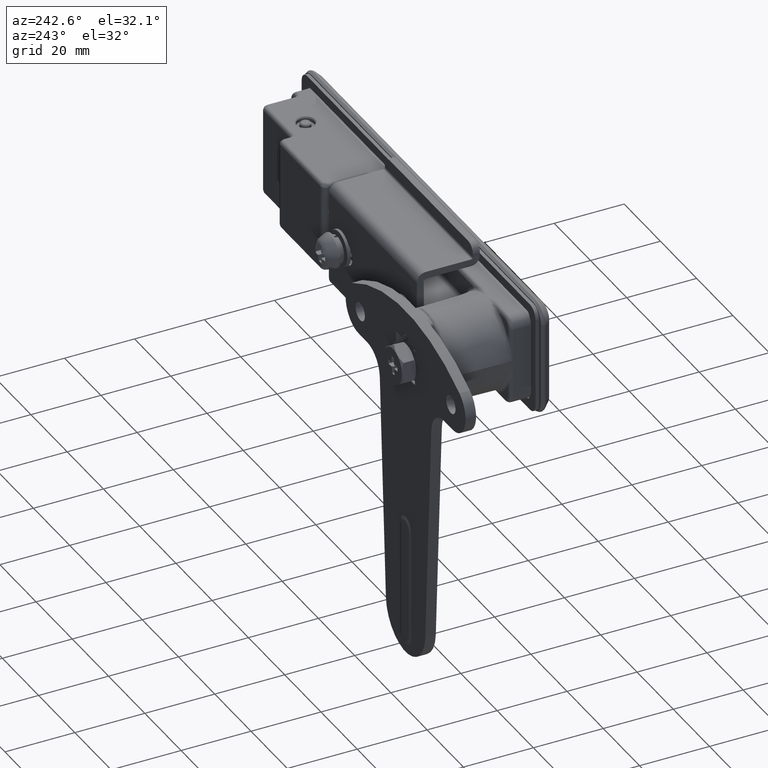
[diagram: clean part render]
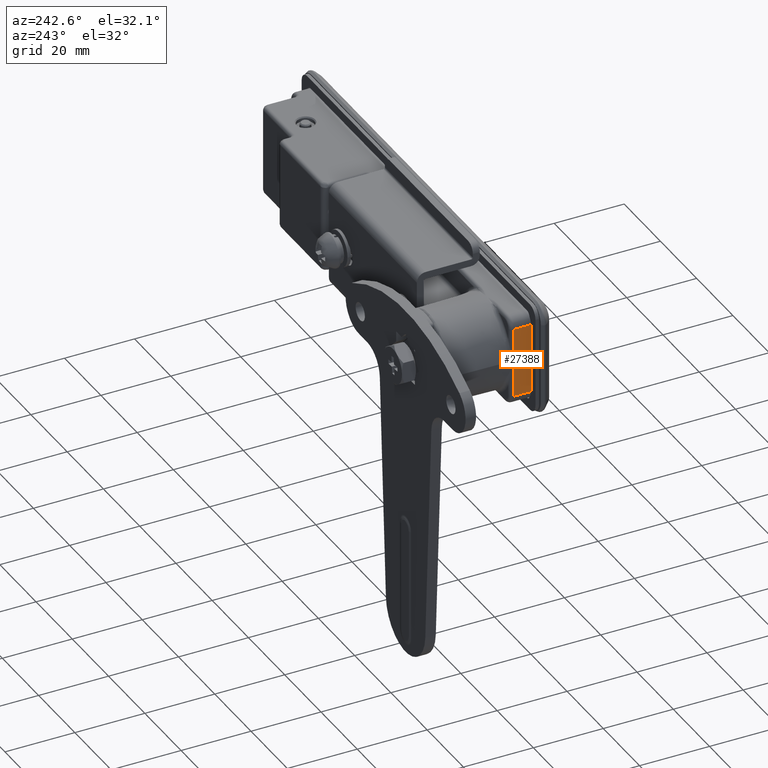
[diagram: same view with one face highlighted and labeled with its STEP entity id]
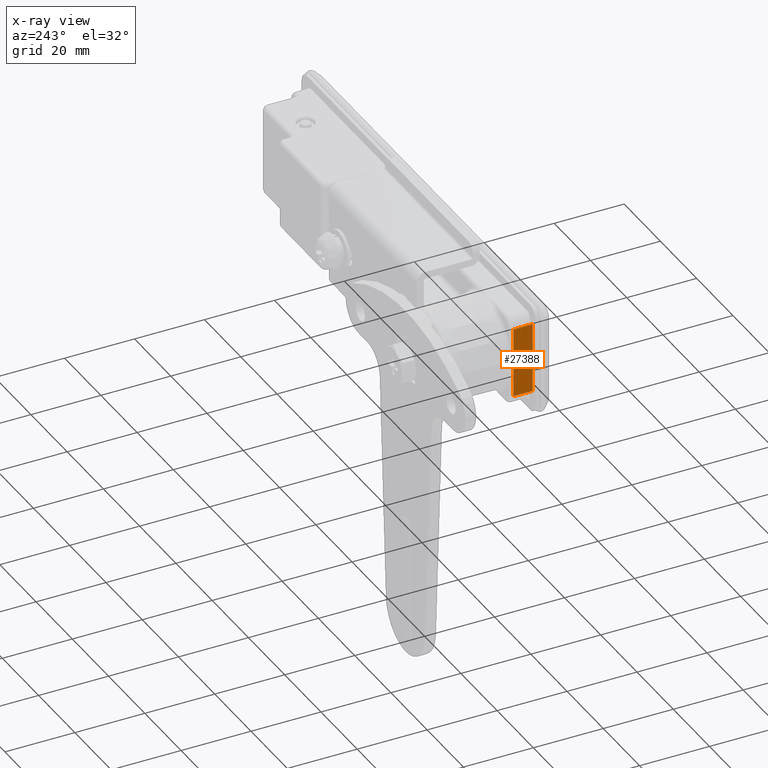
[diagram: x-ray of the same camera — body ghosted, the highlighted face saturated]
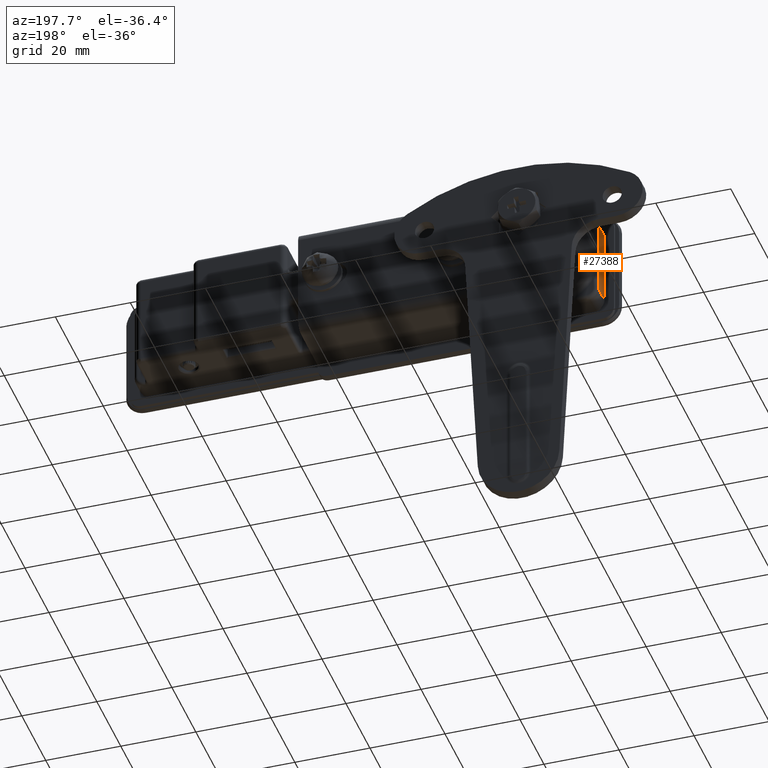
[diagram: same view with one face highlighted and labeled with its STEP entity id]
A machine part, auxiliary view. The second image highlights one B-rep face of the part: STEP entity #27388.
The next image is the same camera in x-ray: the body ghosted, the highlighted face saturated — about 0% of this face is hidden behind the body in this view.
A second angle (auxiliary view) of the same face is appended — the face is thin or edge-on in the first view.
In plain terms, the highlighted planar face has unit normal (-1, 0, 0).
Its self-contained STEP definition (entity closure, byte-faithful):
#2990=FACE_OUTER_BOUND('',#4740,.T.);
#4740=EDGE_LOOP('',(#18288,#18289,#18290,#18291,#18292,#18293,#18294,#18295));
#6656=(
BOUNDED_CURVE()
B_SPLINE_CURVE(2,(#40217,#40218,#40219),.UNSPECIFIED.,.F.,.F.)
B_SPLINE_CURVE_WITH_KNOTS((3,3),(0.498072394161814,1.04686765447884),
 .UNSPECIFIED.)
CURVE()
GEOMETRIC_REPRESENTATION_ITEM()
RATIONAL_B_SPLINE_CURVE((1.00439977624654,1.00567045705582,1.00439976917386))
REPRESENTATION_ITEM('')
);
#6691=B_SPLINE_CURVE_WITH_KNOTS('',3,(#40206,#40207,#40208,#40209,#40210,
#40211,#40212,#40213,#40214,#40215),.UNSPECIFIED.,.F.,.F.,(4,2,2,2,4),(0.,
0.170968410091103,0.333333333281493,0.666666666563085,0.999999999844578),
 .UNSPECIFIED.);
#6692=B_SPLINE_CURVE_WITH_KNOTS('',3,(#40220,#40221,#40222,#40223,#40224,
#40225),.UNSPECIFIED.,.F.,.F.,(4,1,1,4),(0.,0.3333333333333,0.6666666666667,
1.),.UNSPECIFIED.);
#7352=LINE('',#40196,#9397);
#7353=LINE('',#40198,#9398);
#7354=LINE('',#40200,#9399);
#7355=LINE('',#40202,#9400);
#7356=LINE('',#40204,#9401);
#9397=VECTOR('',#32163,9.29763469273417);
#9398=VECTOR('',#32164,5.49999999999996);
#9399=VECTOR('',#32165,19.9999999975058);
#9400=VECTOR('',#32166,5.5);
#9401=VECTOR('',#32167,9.29763469275442);
#11442=VERTEX_POINT('',#40194);
#11443=VERTEX_POINT('',#40195);
#11444=VERTEX_POINT('',#40197);
#11445=VERTEX_POINT('',#40199);
#11446=VERTEX_POINT('',#40201);
#11447=VERTEX_POINT('',#40203);
#11448=VERTEX_POINT('',#40205);
#11449=VERTEX_POINT('',#40216);
#14069=EDGE_CURVE('',#11442,#11443,#7352,.T.);
#14070=EDGE_CURVE('',#11443,#11444,#7353,.T.);
#14071=EDGE_CURVE('',#11445,#11444,#7354,.T.);
#14072=EDGE_CURVE('',#11445,#11446,#7355,.T.);
#14073=EDGE_CURVE('',#11446,#11447,#7356,.T.);
#14074=EDGE_CURVE('',#11447,#11448,#6691,.T.);
#14075=EDGE_CURVE('',#11448,#11449,#6656,.T.);
#14076=EDGE_CURVE('',#11449,#11442,#6692,.T.);
#18288=ORIENTED_EDGE('',*,*,#14069,.T.);
#18289=ORIENTED_EDGE('',*,*,#14070,.T.);
#18290=ORIENTED_EDGE('',*,*,#14071,.F.);
#18291=ORIENTED_EDGE('',*,*,#14072,.T.);
#18292=ORIENTED_EDGE('',*,*,#14073,.T.);
#18293=ORIENTED_EDGE('',*,*,#14074,.T.);
#18294=ORIENTED_EDGE('',*,*,#14075,.T.);
#18295=ORIENTED_EDGE('',*,*,#14076,.T.);
#26724=PLANE('',#29166);
#27388=ADVANCED_FACE('',(#2990),#26724,.T.);
#29166=AXIS2_PLACEMENT_3D('',#40193,#32161,#32162);
#32161=DIRECTION('center_axis',(-1.,0.,0.));
#32162=DIRECTION('ref_axis',(0.,0.,1.));
#32163=DIRECTION('',(4.12206560168E-9,-3.320530747137E-13,-1.));
#32164=DIRECTION('',(0.,-1.,5.735436368261E-11));
#32165=DIRECTION('',(0.,0.,-1.));
#32166=DIRECTION('',(0.,1.,6.320503716366E-11));
#32167=DIRECTION('',(-1.277738168099E-8,-5.957085655642E-13,-1.));
#40193=CARTESIAN_POINT('Origin',(-62.,0.,-13.));
#40194=CARTESIAN_POINT('',(-62.0000000255533,6.00000000000345,-0.702365306306834));
#40195=CARTESIAN_POINT('',(-62.0000000000011,5.99999999999996,-9.999999999041));
#40196=CARTESIAN_POINT('',(-62.00000003833,6.000000000003,-0.7023653063079));
#40197=CARTESIAN_POINT('',(-62.,0.5,-9.99999999858949));
#40198=CARTESIAN_POINT('',(-62.,6.,-9.999999997808));
#40199=CARTESIAN_POINT('',(-62.,0.5,9.99999999891631));
#40200=CARTESIAN_POINT('',(-62.,0.5,9.999999997523));
#40201=CARTESIAN_POINT('',(-62.,6.,9.9999999990684));
#40202=CARTESIAN_POINT('',(-62.,0.5,9.999999997523));
#40203=CARTESIAN_POINT('',(-62.0000001581836,5.99999999999275,0.702365306313983));
#40204=CARTESIAN_POINT('',(-62.,6.,9.99999999787));
#40205=CARTESIAN_POINT('',(-62.0000002045251,6.05778386841189,0.654123882349721));
#40206=CARTESIAN_POINT('Ctrl Pts',(-62.0000003557515,5.99999999998979,0.702365306318987));
#40207=CARTESIAN_POINT('Ctrl Pts',(-62.0000005520823,6.0020906204081,0.698551061158585));
#40208=CARTESIAN_POINT('Ctrl Pts',(-62.0000011179322,6.0043201767498,0.694872304528801));
#40209=CARTESIAN_POINT('Ctrl Pts',(-62.0000002155974,6.00914100021923,0.688063555900843));
#40210=CARTESIAN_POINT('Ctrl Pts',(-61.9999984576217,6.0117120608986,0.684915522435118));
#40211=CARTESIAN_POINT('Ctrl Pts',(-61.9999960989791,6.02019440005953,0.675680690153798));
#40212=CARTESIAN_POINT('Ctrl Pts',(-61.9999979633557,6.02689198715433,0.670088896798071));
#40213=CARTESIAN_POINT('Ctrl Pts',(-62.0000021897448,6.04142633406078,0.660787538506876));
#40214=CARTESIAN_POINT('Ctrl Pts',(-62.0000012215243,6.04926301025926,0.657077833963823));
#40215=CARTESIAN_POINT('Ctrl Pts',(-62.0000006135866,6.05778387198654,0.654123892641236));
#40216=CARTESIAN_POINT('',(-61.9999999289286,6.05777394334109,-0.654129170207008));
#40217=CARTESIAN_POINT('Ctrl Pts',(-62.,6.05778386118781,0.654123861566497));
#40218=CARTESIAN_POINT('Ctrl Pts',(-62.,7.94103087087419,-1.81814455615936E-6));
#40219=CARTESIAN_POINT('Ctrl Pts',(-62.,6.05777336566992,-0.6541275070621));
#40220=CARTESIAN_POINT('Ctrl Pts',(-62.00000008039,6.057774236229,-0.6541300134555));
#40221=CARTESIAN_POINT('Ctrl Pts',(-62.00000008039,6.049288243729,-0.6571285740697));
#40222=CARTESIAN_POINT('Ctrl Pts',(-61.9999999294,6.033598272301,-0.6645364248664));
#40223=CARTESIAN_POINT('Ctrl Pts',(-62.0000001265,6.013490652617,-0.6812828810037));
#40224=CARTESIAN_POINT('Ctrl Pts',(-61.9999997519,6.004068723141,-0.6949293828366));
#40225=CARTESIAN_POINT('Ctrl Pts',(-62.00000003833,6.000000000003,-0.7023653063079));